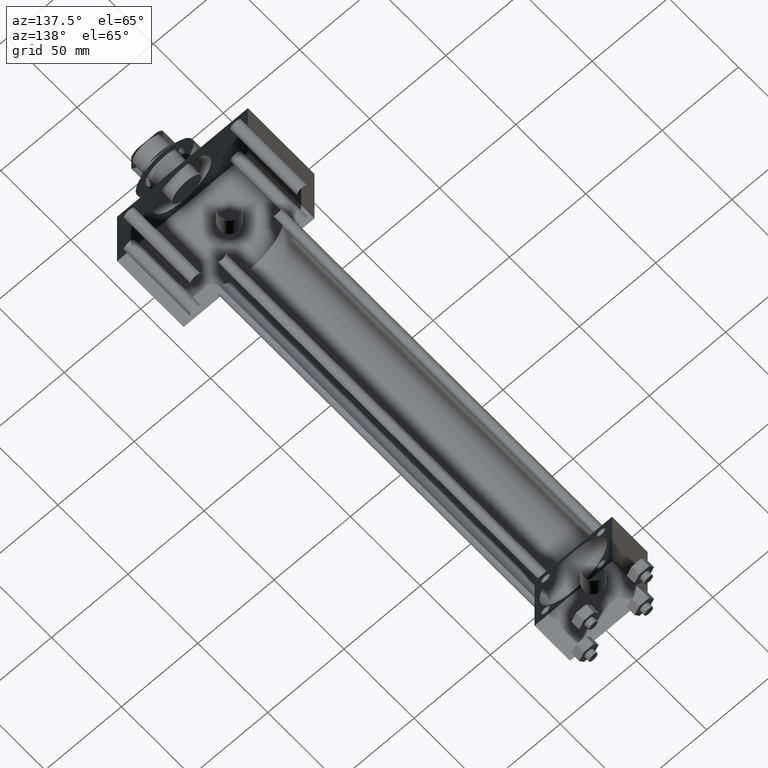
[diagram: clean part render]
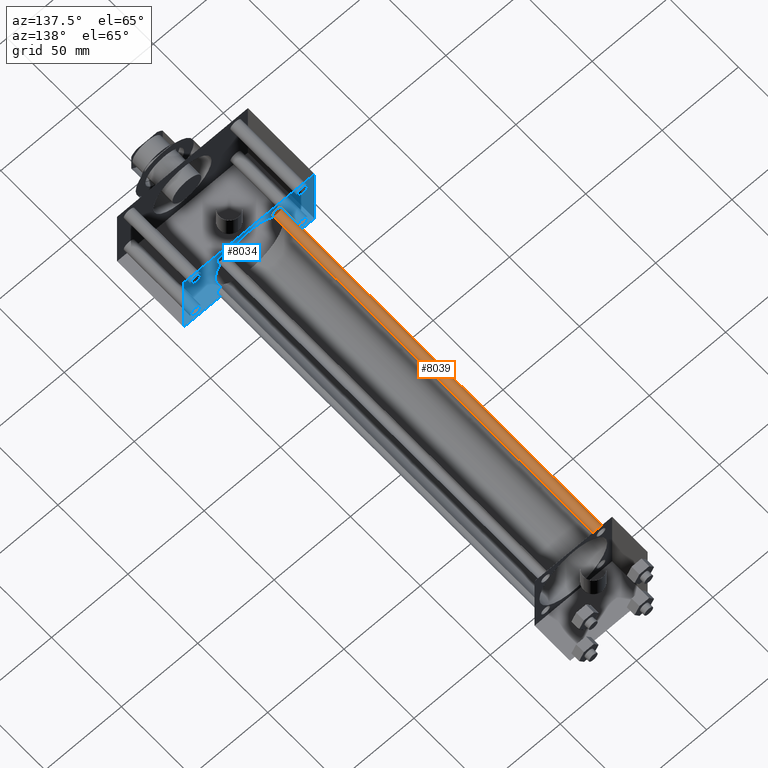
[diagram: same view with the hole feature highlighted: cylindrical wall and planar end face, labeled with their STEP entity ids]
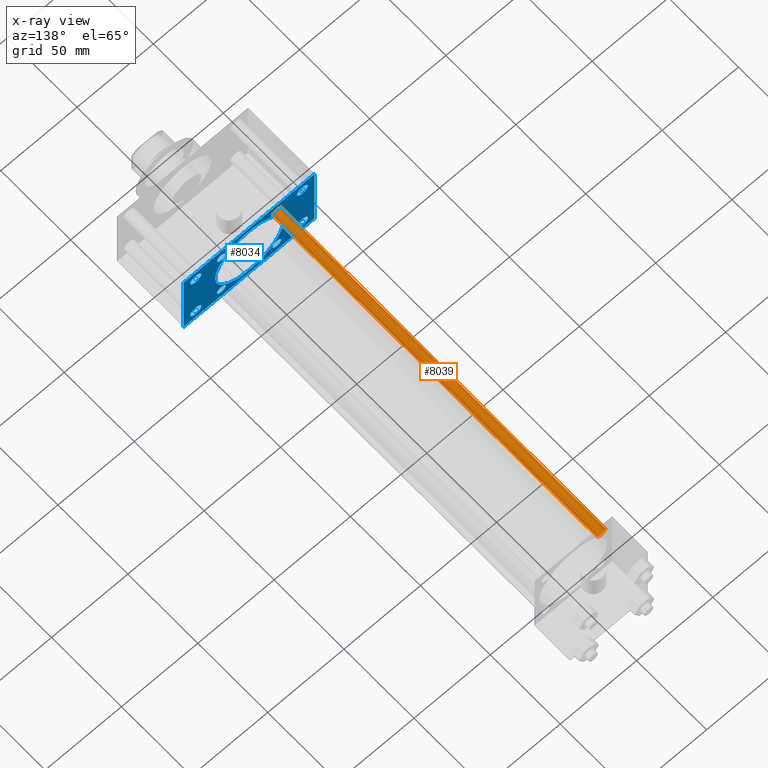
[diagram: x-ray of the same camera — body ghosted, the hole faces saturated]
A machine part, auxiliary view. The highlighted faces form one hole feature of diameter 5.715 mm: the cylindrical wall (entity #8039, orange) and its adjacent planar end face (entity #8034, blue) — they share a circular edge in the B-rep.
The next image is the same camera in x-ray (body ghosted, the hole faces saturated) — the bore reads through the body.
Wall:
#970=EDGE_CURVE('',#976,#976,#971,.T.);
#971=CIRCLE('',#972,2.857500000E+000);
#972=AXIS2_PLACEMENT_3D('',#973,#974,#975);
#973=CARTESIAN_POINT('',(-1.816100000E+001,7.302500000E+001,1.816100000E+001));
#974=DIRECTION('',(0.0E+000,1.0E+000,0.0E+000));
#975=DIRECTION('',(0.0E+000,0.0E+000,1.0E+000));
#976=VERTEX_POINT('',#977);
#977=CARTESIAN_POINT('',(-1.816100000E+001,7.302500000E+001,2.101850000E+001));
#1097=FACE_OUTER_BOUND('',#1099,.T.);
#1098=FACE_BOUND('',#1100,.T.);
#1099=EDGE_LOOP('',(#1101));
#1100=EDGE_LOOP('',(#1102));
#1101=ORIENTED_EDGE('',*,*,#1156,.F.);
#1102=ORIENTED_EDGE('',*,*,#970,.T.);
#1103=CYLINDRICAL_SURFACE('',#1104,2.857500000E+000);
#1104=AXIS2_PLACEMENT_3D('',#1105,#1106,#1107);
#1105=CARTESIAN_POINT('',(-1.816100000E+001,3.048000000E+002,1.816100000E+001));
#1106=DIRECTION('',(0.0E+000,-1.0E+000,0.0E+000));
#1107=DIRECTION('',(0.0E+000,0.0E+000,-1.0E+000));
#1156=EDGE_CURVE('',#1162,#1162,#1157,.T.);
#1157=CIRCLE('',#1158,2.857500000E+000);
#1158=AXIS2_PLACEMENT_3D('',#1159,#1160,#1161);
#1159=CARTESIAN_POINT('',(-1.816100000E+001,3.048000000E+002,1.816100000E+001));
#1160=DIRECTION('',(0.0E+000,1.0E+000,0.0E+000));
#1161=DIRECTION('',(1.0E+000,0.0E+000,0.0E+000));
#1162=VERTEX_POINT('',#1163);
#1163=CARTESIAN_POINT('',(-1.530350000E+001,3.048000000E+002,1.816100000E+001));
#8039=ADVANCED_FACE('',(#1097,#1098),#1103,.T.);
End face:
#614=EDGE_CURVE('',#620,#620,#615,.T.);
#615=CIRCLE('',#616,3.568700000E+000);
#616=AXIS2_PLACEMENT_3D('',#617,#618,#619);
#617=CARTESIAN_POINT('',(-3.492500000E+001,7.302500000E+001,1.816100000E+001));
#618=DIRECTION('',(0.0E+000,1.0E+000,0.0E+000));
#619=DIRECTION('',(0.0E+000,0.0E+000,1.0E+000));
#620=VERTEX_POINT('',#621);
#621=CARTESIAN_POINT('',(-3.492500000E+001,7.302500000E+001,2.172970000E+001));
#641=EDGE_CURVE('',#647,#647,#642,.T.);
#642=CIRCLE('',#643,3.568700000E+000);
#643=AXIS2_PLACEMENT_3D('',#644,#645,#646);
#644=CARTESIAN_POINT('',(3.492500000E+001,7.302500000E+001,1.816100000E+001));
#645=DIRECTION('',(0.0E+000,1.0E+000,0.0E+000));
#646=DIRECTION('',(0.0E+000,0.0E+000,1.0E+000));
#647=VERTEX_POINT('',#648);
#648=CARTESIAN_POINT('',(3.492500000E+001,7.302500000E+001,2.172970000E+001));
#668=EDGE_CURVE('',#674,#674,#669,.T.);
#669=CIRCLE('',#670,3.568700000E+000);
#670=AXIS2_PLACEMENT_3D('',#671,#672,#673);
#671=CARTESIAN_POINT('',(3.492500000E+001,7.302500000E+001,-1.816100000E+001));
#672=DIRECTION('',(0.0E+000,1.0E+000,0.0E+000));
#673=DIRECTION('',(0.0E+000,0.0E+000,1.0E+000));
#674=VERTEX_POINT('',#675);
#675=CARTESIAN_POINT('',(3.492500000E+001,7.302500000E+001,-1.459230000E+001));
#695=EDGE_CURVE('',#701,#701,#696,.T.);
#696=CIRCLE('',#697,3.568700000E+000);
#697=AXIS2_PLACEMENT_3D('',#698,#699,#700);
#698=CARTESIAN_POINT('',(-3.492500000E+001,7.302500000E+001,-1.816100000E+001));
#699=DIRECTION('',(0.0E+000,1.0E+000,0.0E+000));
#700=DIRECTION('',(0.0E+000,0.0E+000,1.0E+000));
#701=VERTEX_POINT('',#702);
#702=CARTESIAN_POINT('',(-3.492500000E+001,7.302500000E+001,-1.459230000E+001));
#784=VERTEX_POINT('',#785);
#785=CARTESIAN_POINT('',(-4.286250000E+001,7.302500000E+001,2.540000000E+001));
#791=VERTEX_POINT('',#792);
#792=CARTESIAN_POINT('',(4.286250000E+001,7.302500000E+001,2.540000000E+001));
#793=EDGE_CURVE('',#791,#784,#794,.T.);
#794=LINE('',#795,#796);
#795=CARTESIAN_POINT('',(4.286250000E+001,7.302500000E+001,2.540000000E+001));
#796=VECTOR('',#797,1.0E+000);
#797=DIRECTION('',(-1.0E+000,0.0E+000,0.0E+000));
#817=VERTEX_POINT('',#818);
#818=CARTESIAN_POINT('',(4.286250000E+001,7.302500000E+001,-2.540000000E+001));
#824=VERTEX_POINT('',#825);
#825=CARTESIAN_POINT('',(-4.286250000E+001,7.302500000E+001,-2.540000000E+001));
#826=EDGE_CURVE('',#824,#817,#827,.T.);
#827=LINE('',#828,#829);
#828=CARTESIAN_POINT('',(-4.286250000E+001,7.302500000E+001,-2.540000000E+001));
#829=VECTOR('',#830,1.0E+000);
#830=DIRECTION('',(1.0E+000,0.0E+000,0.0E+000));
#845=EDGE_CURVE('',#817,#791,#846,.T.);
#846=LINE('',#847,#848);
#847=CARTESIAN_POINT('',(4.286250000E+001,7.302500000E+001,-2.540000000E+001));
#848=VECTOR('',#849,1.0E+000);
#849=DIRECTION('',(0.0E+000,0.0E+000,1.0E+000));
#864=EDGE_CURVE('',#784,#824,#865,.T.);
#865=LINE('',#866,#867);
#866=CARTESIAN_POINT('',(-4.286250000E+001,7.302500000E+001,2.540000000E+001));
#867=VECTOR('',#868,1.0E+000);
#868=DIRECTION('',(0.0E+000,0.0E+000,-1.0E+000));
#889=EDGE_CURVE('',#895,#895,#890,.T.);
#890=CIRCLE('',#891,2.857500000E+000);
#891=AXIS2_PLACEMENT_3D('',#892,#893,#894);
#892=CARTESIAN_POINT('',(-1.816100000E+001,7.302500000E+001,-1.816100000E+001));
#893=DIRECTION('',(0.0E+000,1.0E+000,0.0E+000));
#894=DIRECTION('',(1.0E+000,0.0E+000,0.0E+000));
#895=VERTEX_POINT('',#896);
#896=CARTESIAN_POINT('',(-1.530350000E+001,7.302500000E+001,-1.816100000E+001));
#916=EDGE_CURVE('',#922,#922,#917,.T.);
#917=CIRCLE('',#918,2.857500000E+000);
#918=AXIS2_PLACEMENT_3D('',#919,#920,#921);
#919=CARTESIAN_POINT('',(1.816100000E+001,7.302500000E+001,-1.816100000E+001));
#920=DIRECTION('',(0.0E+000,1.0E+000,0.0E+000));
#921=DIRECTION('',(0.0E+000,0.0E+000,1.0E+000));
#922=VERTEX_POINT('',#923);
#923=CARTESIAN_POINT('',(1.816100000E+001,7.302500000E+001,-1.530350000E+001));
#943=EDGE_CURVE('',#949,#949,#944,.T.);
#944=CIRCLE('',#945,2.857500000E+000);
#945=AXIS2_PLACEMENT_3D('',#946,#947,#948);
#946=CARTESIAN_POINT('',(1.816100000E+001,7.302500000E+001,1.816100000E+001));
#947=DIRECTION('',(0.0E+000,1.0E+000,0.0E+000));
#948=DIRECTION('',(0.0E+000,0.0E+000,1.0E+000));
#949=VERTEX_POINT('',#950);
#950=CARTESIAN_POINT('',(1.816100000E+001,7.302500000E+001,2.101850000E+001));
#970=EDGE_CURVE('',#976,#976,#971,.T.);
#971=CIRCLE('',#972,2.857500000E+000);
#972=AXIS2_PLACEMENT_3D('',#973,#974,#975);
#973=CARTESIAN_POINT('',(-1.816100000E+001,7.302500000E+001,1.816100000E+001));
#974=DIRECTION('',(0.0E+000,1.0E+000,0.0E+000));
#975=DIRECTION('',(0.0E+000,0.0E+000,1.0E+000));
#976=VERTEX_POINT('',#977);
#977=CARTESIAN_POINT('',(-1.816100000E+001,7.302500000E+001,2.101850000E+001));
#983=FACE_OUTER_BOUND('',#993,.T.);
#984=FACE_BOUND('',#994,.T.);
#985=FACE_BOUND('',#995,.T.);
#986=FACE_BOUND('',#996,.T.);
#987=FACE_BOUND('',#997,.T.);
#988=FACE_BOUND('',#998,.T.);
#989=FACE_BOUND('',#999,.T.);
#990=FACE_BOUND('',#1000,.T.);
#991=FACE_BOUND('',#1001,.T.);
#992=FACE_BOUND('',#1002,.T.);
#993=EDGE_LOOP('',(#1003));
#994=EDGE_LOOP('',(#1004));
#995=EDGE_LOOP('',(#1005,#1006,#1007,#1008));
#996=EDGE_LOOP('',(#1009));
#997=EDGE_LOOP('',(#1010));
#998=EDGE_LOOP('',(#1011));
#999=EDGE_LOOP('',(#1012));
#1000=EDGE_LOOP('',(#1013));
#1001=EDGE_LOOP('',(#1014));
#1002=EDGE_LOOP('',(#1015));
#1003=ORIENTED_EDGE('',*,*,#970,.F.);
#1004=ORIENTED_EDGE('',*,*,#916,.F.);
#1005=ORIENTED_EDGE('',*,*,#826,.F.);
#1006=ORIENTED_EDGE('',*,*,#864,.F.);
#1007=ORIENTED_EDGE('',*,*,#793,.F.);
#1008=ORIENTED_EDGE('',*,*,#845,.F.);
#1009=ORIENTED_EDGE('',*,*,#695,.F.);
#1010=ORIENTED_EDGE('',*,*,#668,.F.);
#1011=ORIENTED_EDGE('',*,*,#641,.F.);
#1012=ORIENTED_EDGE('',*,*,#614,.F.);
#1013=ORIENTED_EDGE('',*,*,#889,.F.);
#1014=ORIENTED_EDGE('',*,*,#943,.F.);
#1015=ORIENTED_EDGE('',*,*,#1016,.F.);
#1016=EDGE_CURVE('',#1022,#1022,#1017,.T.);
#1017=CIRCLE('',#1018,2.222500000E+001);
#1018=AXIS2_PLACEMENT_3D('',#1019,#1020,#1021);
#1019=CARTESIAN_POINT('',(0.000000000E+000,7.302500000E+001,0.000000000E+000));
#1020=DIRECTION('',(0.0E+000,1.0E+000,0.0E+000));
#1021=DIRECTION('',(0.0E+000,0.0E+000,1.0E+000));
#1022=VERTEX_POINT('',#1023);
#1023=CARTESIAN_POINT('',(2.222500000E+001,7.302500000E+001,0.000000000E+000));
#1024=PLANE('',#1025);
#1025=AXIS2_PLACEMENT_3D('',#1026,#1027,#1028);
#1026=CARTESIAN_POINT('',(-4.286250000E+001,7.302500000E+001,-2.540000000E+001));
#1027=DIRECTION('',(0.0E+000,1.0E+000,0.0E+000));
#1028=DIRECTION('',(0.0E+000,0.0E+000,1.0E+000));
#8034=ADVANCED_FACE('',(#983,#984,#985,#986,#987,#988,#989,#990,
   #991,#992),#1024,.T.);